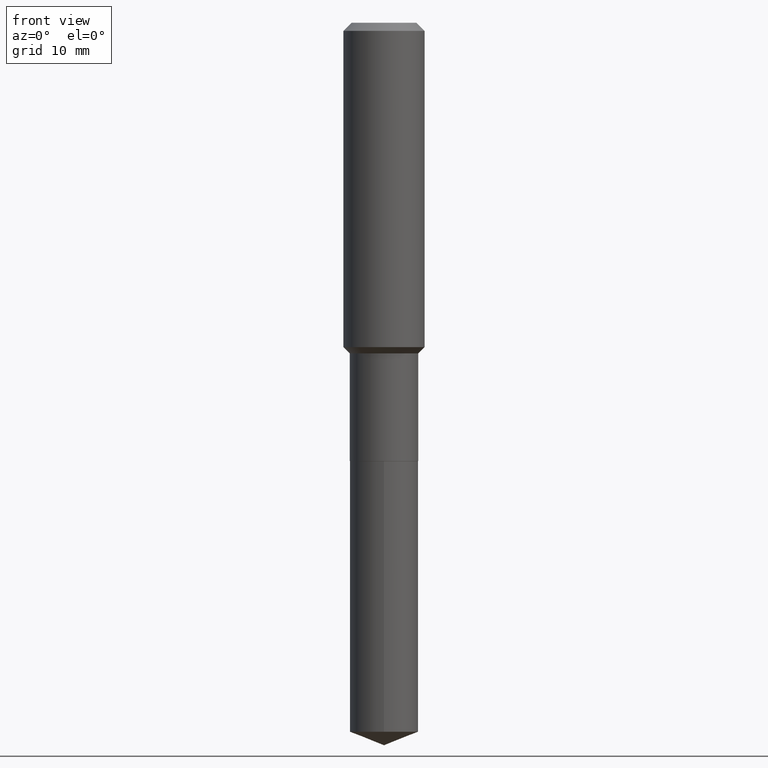
[diagram: clean part render]
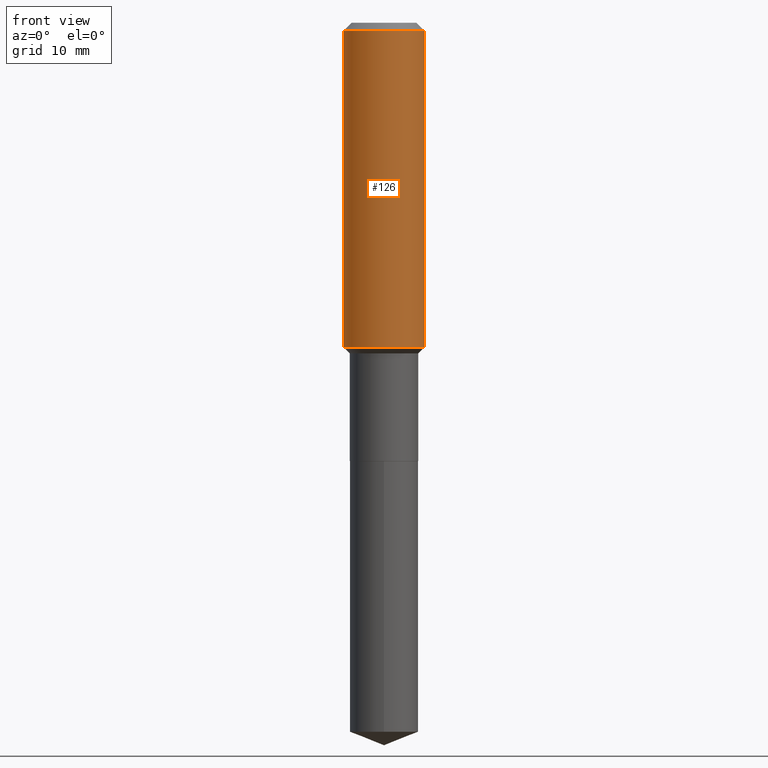
[diagram: same view with one face highlighted and labeled with its STEP entity id]
A machine part, front view. The second image highlights one B-rep face of the part: STEP entity #126.
In plain terms, the highlighted cylindrical surface (partial cylindrical patch) has radius 5 mm, axis along (-0, 0, 1).
Its self-contained STEP definition (entity closure, byte-faithful):
#7 = AXIS2_PLACEMENT_3D ( 'NONE', #401, #405, #254 ) ;
#11 = DIRECTION ( 'NONE',  ( 1.000000000000000000, -6.982962677686265922E-15, 0.000000000000000000 ) ) ;
#34 = DIRECTION ( 'NONE',  ( -2.445468806185136597E-29, 3.491481338843145583E-15, 1.000000000000000000 ) ) ;
#52 = FACE_OUTER_BOUND ( 'NONE', #428, .T. ) ;
#60 = ORIENTED_EDGE ( 'NONE', *, *, #188, .T. ) ;
#62 = CARTESIAN_POINT ( 'NONE',  ( -0.1968500000000000527, -1.415814646711089373E-15, -0.03937000000000027283 ) ) ;
#87 = CARTESIAN_POINT ( 'NONE',  ( 0.1968500000000002192, -6.866172626901982716E-15, -1.572849999999999637 ) ) ;
#88 = CARTESIAN_POINT ( 'NONE',  ( 0.1968500000000000527, -1.512055823412797583E-15, -0.03937000000000027283 ) ) ;
#101 = DIRECTION ( 'NONE',  ( -2.445468806185136877E-29, 3.491481338843145188E-15, 1.000000000000000000 ) ) ;
#109 = VERTEX_POINT ( 'NONE', #62 ) ;
#113 = VERTEX_POINT ( 'NONE', #87 ) ;
#121 = ORIENTED_EDGE ( 'NONE', *, *, #160, .T. ) ;
#122 = DIRECTION ( 'NONE',  ( -2.445468806185136877E-29, 3.491481338843145188E-15, 1.000000000000000000 ) ) ;
#126 = ADVANCED_FACE ( 'NONE', ( #52 ), #297, .T. ) ;
#128 = CIRCLE ( 'NONE', #185, 0.1968500000000002192 ) ;
#147 = DIRECTION ( 'NONE',  ( -2.445468806185136597E-29, 3.491481338843145583E-15, 1.000000000000000000 ) ) ;
#159 = VECTOR ( 'NONE', #122, 39.37007874015748143 ) ;
#160 = EDGE_CURVE ( 'NONE', #248, #113, #128, .T. ) ;
#177 = LINE ( 'NONE', #355, #159 ) ;
#180 = ORIENTED_EDGE ( 'NONE', *, *, #326, .F. ) ;
#183 = CARTESIAN_POINT ( 'NONE',  ( 3.846355611808290981E-29, -5.491576423799439530E-15, -1.572849999999999637 ) ) ;
#185 = AXIS2_PLACEMENT_3D ( 'NONE', #183, #147, #11 ) ;
#188 = EDGE_CURVE ( 'NONE', #113, #350, #337, .T. ) ;
#192 = VECTOR ( 'NONE', #101, 39.37007874015748143 ) ;
#248 = VERTEX_POINT ( 'NONE', #362 ) ;
#254 = DIRECTION ( 'NONE',  ( 1.000000000000000000, -6.982962677686266711E-15, 4.876176775795935793E-29 ) ) ;
#297 = CYLINDRICAL_SURFACE ( 'NONE', #7, 0.1968500000000001082 ) ;
#326 = EDGE_CURVE ( 'NONE', #109, #350, #408, .T. ) ;
#337 = LINE ( 'NONE', #436, #192 ) ;
#350 = VERTEX_POINT ( 'NONE', #88 ) ;
#355 = CARTESIAN_POINT ( 'NONE',  ( -0.1968500000000001082, 1.398703375343757985E-15, -9.682923725166787881E-30 ) ) ;
#356 = DIRECTION ( 'NONE',  ( 1.000000000000000000, -6.982962677686266711E-15, 0.000000000000000000 ) ) ;
#362 = CARTESIAN_POINT ( 'NONE',  ( -0.1968500000000002192, -4.092873048455680953E-15, -1.572849999999999637 ) ) ;
#367 = EDGE_CURVE ( 'NONE', #248, #109, #177, .T. ) ;
#370 = ORIENTED_EDGE ( 'NONE', *, *, #367, .F. ) ;
#381 = CARTESIAN_POINT ( 'NONE',  ( 9.627810689950950651E-31, -1.374596203102555808E-16, -0.03937000000000027283 ) ) ;
#401 = CARTESIAN_POINT ( 'NONE',  ( 0.000000000000000000, 0.000000000000000000, 0.000000000000000000 ) ) ;
#405 = DIRECTION ( 'NONE',  ( -2.445468806185136597E-29, 3.491481338843145583E-15, 1.000000000000000000 ) ) ;
#408 = CIRCLE ( 'NONE', #468, 0.1968500000000000527 ) ;
#428 = EDGE_LOOP ( 'NONE', ( #370, #121, #60, #180 ) ) ;
#436 = CARTESIAN_POINT ( 'NONE',  ( 0.1968500000000001082, -1.374596203102542397E-15, 9.598753983154305062E-30 ) ) ;
#468 = AXIS2_PLACEMENT_3D ( 'NONE', #381, #34, #356 ) ;